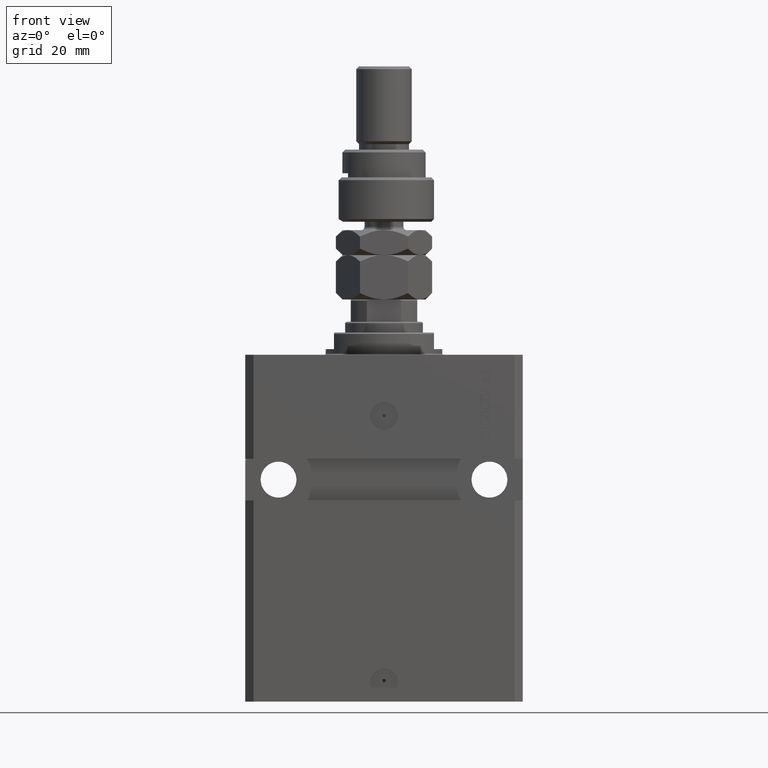
[diagram: clean part render]
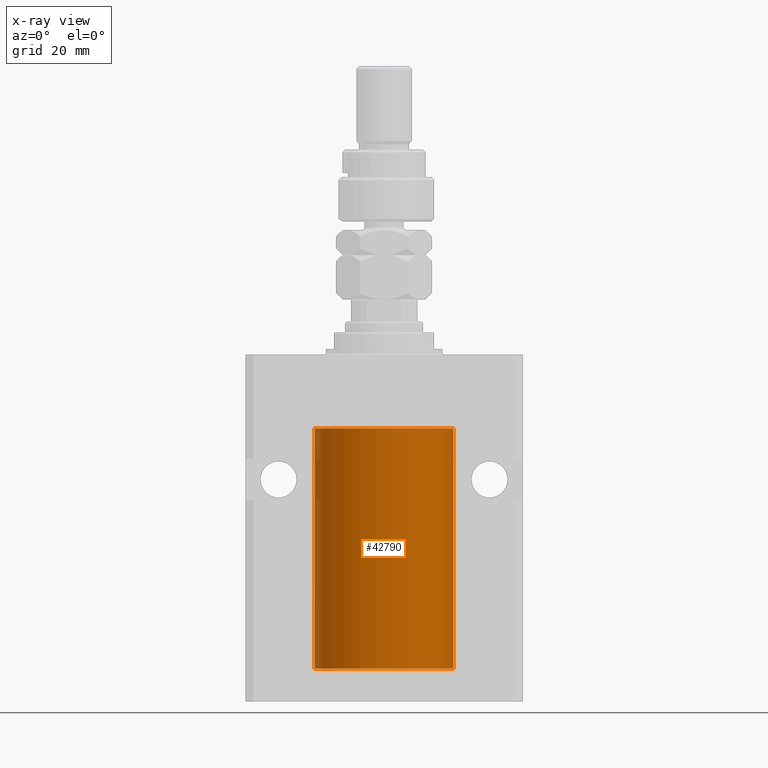
[diagram: x-ray — body ghosted, one internal face saturated and labeled with its STEP entity id]
A machine part, front view, then the same camera in x-ray: the body is ghosted and one INTERNAL B-rep face — a face not visible from any outside direction — is saturated and labeled: STEP entity #42790.
In plain terms, the highlighted cylindrical surface (partial cylindrical patch) has radius 25 mm, axis along (0, 0, 1).
Its self-contained STEP definition (entity closure, byte-faithful):
#293 = CARTESIAN_POINT ( 'NONE',  ( -25.00000000000000000, 3.061616997868383043E-15, -113.0999999999999943 ) ) ;
#565 = ORIENTED_EDGE ( 'NONE', *, *, #14813, .F. ) ;
#1924 = EDGE_LOOP ( 'NONE', ( #565, #21709, #34265, #15540, #36417, #9934 ) ) ;
#2645 = AXIS2_PLACEMENT_3D ( 'NONE', #47425, #43089, #28519 ) ;
#2818 = CIRCLE ( 'NONE', #15043, 25.00000000000000000 ) ;
#5700 = CARTESIAN_POINT ( 'NONE',  ( -25.00000000000000000, -2.540720905424995806E-14, -109.8750000000000000 ) ) ;
#5996 = VERTEX_POINT ( 'NONE', #45590 ) ;
#6777 = VERTEX_POINT ( 'NONE', #33631 ) ;
#6790 = DIRECTION ( 'NONE',  ( -0.000000000000000000, -0.000000000000000000, 1.000000000000000000 ) ) ;
#7941 = DIRECTION ( 'NONE',  ( -0.000000000000000000, -0.000000000000000000, 1.000000000000000000 ) ) ;
#9086 = CARTESIAN_POINT ( 'NONE',  ( -25.00000000000000000, -2.540720905424995806E-14, -109.8750000000000000 ) ) ;
#9536 = CARTESIAN_POINT ( 'NONE',  ( -24.99812796309119634, -0.3269516851027584048, -109.9429046887702128 ) ) ;
#9934 = ORIENTED_EDGE ( 'NONE', *, *, #17897, .F. ) ;
#11193 = VERTEX_POINT ( 'NONE', #49056 ) ;
#11359 = CARTESIAN_POINT ( 'NONE',  ( 0.000000000000000000, 0.000000000000000000, -113.0999999999999943 ) ) ;
#12848 = CARTESIAN_POINT ( 'NONE',  ( -25.00000000000008171, 3.517566575222595158E-13, -111.1250000000032827 ) ) ;
#13767 = EDGE_CURVE ( 'NONE', #49099, #31254, #20830, .T. ) ;
#14813 = EDGE_CURVE ( 'NONE', #49099, #6777, #2818, .T. ) ;
#15043 = AXIS2_PLACEMENT_3D ( 'NONE', #11359, #49941, #26948 ) ;
#15540 = ORIENTED_EDGE ( 'NONE', *, *, #19892, .T. ) ;
#16403 = EDGE_CURVE ( 'NONE', #31254, #32090, #37792, .T. ) ;
#17897 = EDGE_CURVE ( 'NONE', #6777, #5996, #36488, .T. ) ;
#18799 = CARTESIAN_POINT ( 'NONE',  ( -25.00000000000008171, 3.517566575222595158E-13, -111.1250000000032827 ) ) ;
#19892 = EDGE_CURVE ( 'NONE', #32090, #11193, #27096, .T. ) ;
#20748 = EDGE_CURVE ( 'NONE', #11193, #5996, #34685, .T. ) ;
#20830 = LINE ( 'NONE', #42253, #33806 ) ;
#21709 = ORIENTED_EDGE ( 'NONE', *, *, #13767, .T. ) ;
#24245 = CARTESIAN_POINT ( 'NONE',  ( 25.00000000000000000, 0.000000000000000000, -113.0999999999999943 ) ) ;
#24350 = CARTESIAN_POINT ( 'NONE',  ( -24.99406145684571001, -0.5569515746258935085, -110.8270940848234858 ) ) ;
#24647 = DIRECTION ( 'NONE',  ( 1.000000000000000000, 0.000000000000000000, 0.000000000000000000 ) ) ;
#24865 = CARTESIAN_POINT ( 'NONE',  ( -24.99813644420120795, -0.3263088753891773552, -111.0574119792819374 ) ) ;
#26484 = VECTOR ( 'NONE', #7941, 1000.000000000000000 ) ;
#26948 = DIRECTION ( 'NONE',  ( 1.000000000000000000, 0.000000000000000000, 0.000000000000000000 ) ) ;
#27096 = LINE ( 'NONE', #293, #26484 ) ;
#28441 = CARTESIAN_POINT ( 'NONE',  ( -24.99218282981962247, -0.6251379207535883165, -110.3356756471091558 ) ) ;
#28519 = DIRECTION ( 'NONE',  ( 1.000000000000000000, 0.000000000000000000, 0.000000000000000000 ) ) ;
#28952 = CARTESIAN_POINT ( 'NONE',  ( -24.99218973898648599, -0.6248616403601209290, -110.6653718335254695 ) ) ;
#29815 = AXIS2_PLACEMENT_3D ( 'NONE', #31798, #32301, #24647 ) ;
#31254 = VERTEX_POINT ( 'NONE', #18799 ) ;
#31798 = CARTESIAN_POINT ( 'NONE',  ( 0.000000000000000000, 0.000000000000000000, -26.60000000000000142 ) ) ;
#32050 = CARTESIAN_POINT ( 'NONE',  ( -25.00000000000000000, 3.061616997868383043E-15, -113.0999999999999943 ) ) ;
#32090 = VERTEX_POINT ( 'NONE', #9086 ) ;
#32301 = DIRECTION ( 'NONE',  ( 0.000000000000000000, 0.000000000000000000, 1.000000000000000000 ) ) ;
#33631 = CARTESIAN_POINT ( 'NONE',  ( 25.00000000000000000, 0.000000000000000000, -113.0999999999999943 ) ) ;
#33806 = VECTOR ( 'NONE', #6790, 1000.000000000000000 ) ;
#34265 = ORIENTED_EDGE ( 'NONE', *, *, #16403, .T. ) ;
#34685 = CIRCLE ( 'NONE', #29815, 25.00000000000000000 ) ;
#36351 = CARTESIAN_POINT ( 'NONE',  ( -24.99404783808660824, -0.5575587241817697715, -110.1738392125429868 ) ) ;
#36417 = ORIENTED_EDGE ( 'NONE', *, *, #20748, .T. ) ;
#36488 = LINE ( 'NONE', #24245, #40829 ) ;
#37792 = B_SPLINE_CURVE_WITH_KNOTS ( 'NONE', 3,
 ( #12848, #44260, #24865, #24350, #28952, #28441, #36351, #9536, #40175, #5700 ),
 .UNSPECIFIED., .F., .F.,
 ( 4, 2, 2, 2, 4 ),
 ( 0.001954111766881341111, 0.002442529193076332407, 0.002930946619271323703, 0.003419364045466314998, 0.003907781471661306294 ),
 .UNSPECIFIED. ) ;
#39266 = CYLINDRICAL_SURFACE ( 'NONE', #2645, 25.00000000000000000 ) ;
#39753 = FACE_OUTER_BOUND ( 'NONE', #1924, .T. ) ;
#40175 = CARTESIAN_POINT ( 'NONE',  ( -25.00000000000000355, -0.1651503688830821270, -109.8750000000000142 ) ) ;
#40829 = VECTOR ( 'NONE', #47489, 1000.000000000000000 ) ;
#42253 = CARTESIAN_POINT ( 'NONE',  ( -25.00000000000000000, 3.061616997868383043E-15, -113.0999999999999943 ) ) ;
#42790 = ADVANCED_FACE ( 'NONE', ( #39753 ), #39266, .F. ) ;
#43089 = DIRECTION ( 'NONE',  ( -0.000000000000000000, -0.000000000000000000, 1.000000000000000000 ) ) ;
#44260 = CARTESIAN_POINT ( 'NONE',  ( -24.99999999999999645, -0.1631302912503610480, -111.1250000000001421 ) ) ;
#45590 = CARTESIAN_POINT ( 'NONE',  ( 25.00000000000000000, 0.000000000000000000, -26.60000000000000142 ) ) ;
#47425 = CARTESIAN_POINT ( 'NONE',  ( 0.000000000000000000, 0.000000000000000000, -113.0999999999999943 ) ) ;
#47489 = DIRECTION ( 'NONE',  ( -0.000000000000000000, -0.000000000000000000, 1.000000000000000000 ) ) ;
#49056 = CARTESIAN_POINT ( 'NONE',  ( -25.00000000000000000, 3.061616997868383043E-15, -26.60000000000000142 ) ) ;
#49099 = VERTEX_POINT ( 'NONE', #32050 ) ;
#49941 = DIRECTION ( 'NONE',  ( 0.000000000000000000, 0.000000000000000000, 1.000000000000000000 ) ) ;